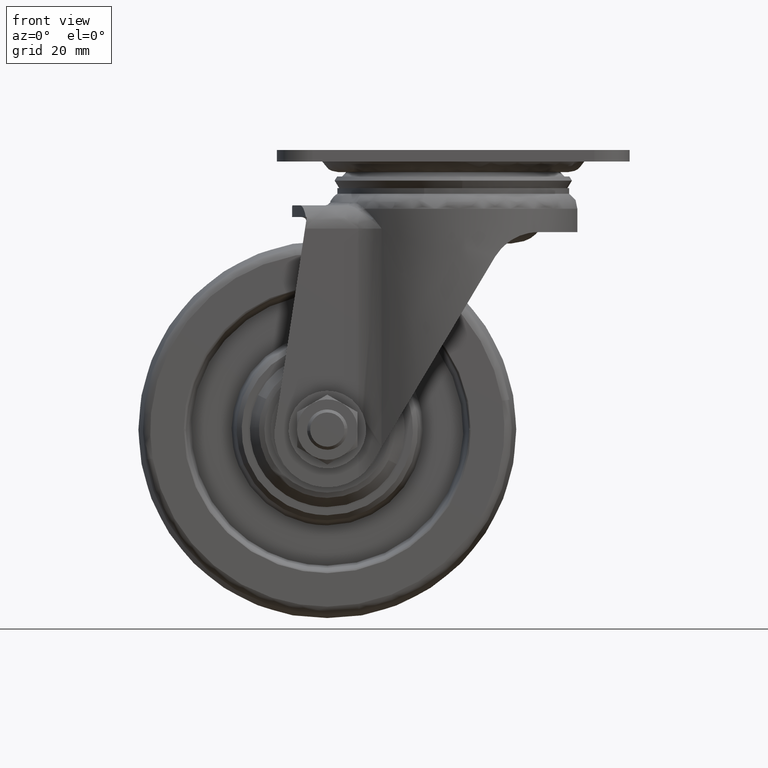
[diagram: clean part render]
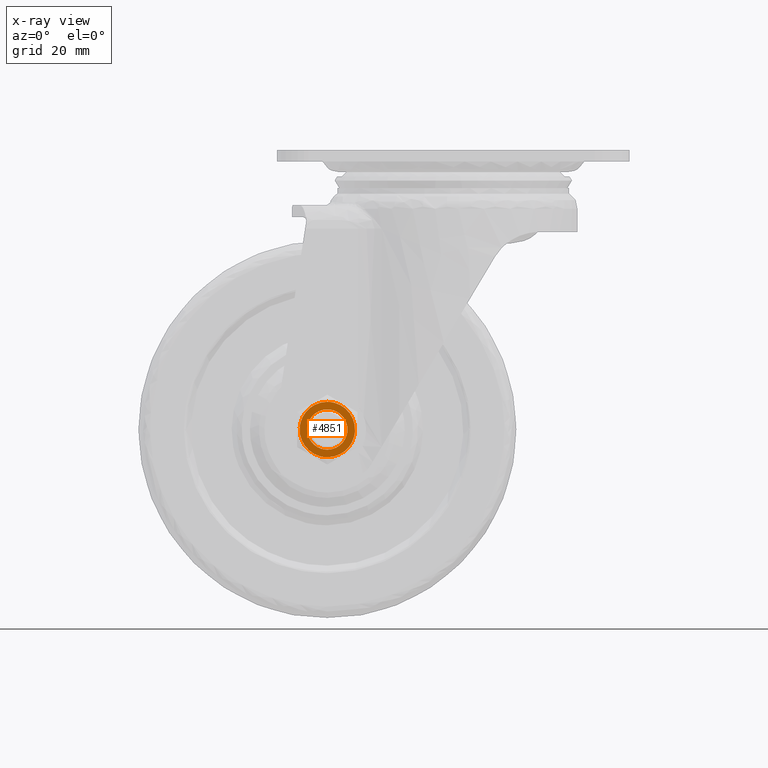
[diagram: x-ray — body ghosted, one internal face saturated and labeled with its STEP entity id]
A machine part, front view, then the same camera in x-ray: the body is ghosted and one INTERNAL B-rep face — a face not visible from any outside direction — is saturated and labeled: STEP entity #4851.
In plain terms, the highlighted face is a freeform B-spline surface patch.
Its self-contained STEP definition (entity closure, byte-faithful):
#4338=CARTESIAN_POINT('',(-21.007460806326531,-16.508500000000002,-55.744149158367620));
#4339=VERTEX_POINT('',#4338);
#4340=CARTESIAN_POINT('',(-25.0,-16.508500000000002,-51.499954999999332));
#4341=VERTEX_POINT('',#4340);
#4342=CARTESIAN_POINT('',(-21.007460806326534,-16.508499999999998,-55.744149158367641));
#4343=CARTESIAN_POINT('',(-21.0,-16.508499999999998,-55.622166053308440));
#4344=CARTESIAN_POINT('',(-21.0,-16.508500000000002,-55.499954999999318));
#4345=CARTESIAN_POINT('',(-21.000000000000004,-16.508499999999998,-51.499954999999332));
#4346=CARTESIAN_POINT('',(-25.0,-16.508500000000002,-51.499954999999332));
#4354=(BOUNDED_CURVE()B_SPLINE_CURVE(2,(#4342,#4343,#4344,#4345,#4346),.UNSPECIFIED.,.F.,.U.)B_SPLINE_CURVE_WITH_KNOTS((3,2,3),(0.239332962232077,0.250000000000000,0.500000000000000),.UNSPECIFIED.)CURVE()GEOMETRIC_REPRESENTATION_ITEM()RATIONAL_B_SPLINE_CURVE((0.976072041652002,0.987502787891793,1.0,0.707106781186548,1.0))REPRESENTATION_ITEM(''));
#4355=EDGE_CURVE('',#4339,#4341,#4354,.T.);
#4357=CARTESIAN_POINT('',(-28.992539193673469,-16.508500000000002,-55.255760841631023));
#4358=VERTEX_POINT('',#4357);
#4359=CARTESIAN_POINT('',(-25.0,-16.508500000000002,-51.499954999999332));
#4360=CARTESIAN_POINT('',(-28.762824267406657,-16.508499999999994,-51.499954999999325));
#4361=CARTESIAN_POINT('',(-28.992539193673473,-16.508500000000002,-55.255760841631009));
#4369=(BOUNDED_CURVE()B_SPLINE_CURVE(2,(#4359,#4360,#4361),.UNSPECIFIED.,.F.,.U.)B_SPLINE_CURVE_WITH_KNOTS((3,3),(0.500000000000000,0.739332962232077),.UNSPECIFIED.)CURVE()GEOMETRIC_REPRESENTATION_ITEM()RATIONAL_B_SPLINE_CURVE((1.0,0.719603993294754,0.976072041652002))REPRESENTATION_ITEM(''));
#4370=EDGE_CURVE('',#4341,#4358,#4369,.T.);
#4405=CARTESIAN_POINT('',(-25.0,-16.508500000000002,-59.499954999999318));
#4406=VERTEX_POINT('',#4405);
#4407=CARTESIAN_POINT('',(-25.0,-16.508500000000002,-59.499954999999318));
#4408=CARTESIAN_POINT('',(-21.237175732593336,-16.508500000000002,-59.499954999999318));
#4409=CARTESIAN_POINT('',(-21.007460806326534,-16.508499999999991,-55.744149158367620));
#4417=(BOUNDED_CURVE()B_SPLINE_CURVE(2,(#4407,#4408,#4409),.UNSPECIFIED.,.F.,.U.)B_SPLINE_CURVE_WITH_KNOTS((3,3),(0.0,0.239332962232077),.UNSPECIFIED.)CURVE()GEOMETRIC_REPRESENTATION_ITEM()RATIONAL_B_SPLINE_CURVE((1.0,0.719603993294754,0.976072041652003))REPRESENTATION_ITEM(''));
#4418=EDGE_CURVE('',#4406,#4339,#4417,.T.);
#4424=CARTESIAN_POINT('',(-28.992539193673473,-16.508500000000002,-55.255760841631009));
#4425=CARTESIAN_POINT('',(-29.0,-16.508499999999994,-55.377743946690195));
#4426=CARTESIAN_POINT('',(-29.0,-16.508500000000002,-55.499954999999318));
#4427=CARTESIAN_POINT('',(-29.0,-16.508499999999998,-59.499954999999325));
#4428=CARTESIAN_POINT('',(-25.0,-16.508500000000002,-59.499954999999318));
#4436=(BOUNDED_CURVE()B_SPLINE_CURVE(2,(#4424,#4425,#4426,#4427,#4428),.UNSPECIFIED.,.F.,.U.)B_SPLINE_CURVE_WITH_KNOTS((3,2,3),(0.739332962232077,0.750000000000000,1.0),.UNSPECIFIED.)CURVE()GEOMETRIC_REPRESENTATION_ITEM()RATIONAL_B_SPLINE_CURVE((0.976072041652002,0.987502787891793,1.0,0.707106781186548,1.0))REPRESENTATION_ITEM(''));
#4437=EDGE_CURVE('',#4358,#4406,#4436,.T.);
#4774=CARTESIAN_POINT('',(-31.049314630200371,-16.508500000000002,-49.450505021319437));
#4775=CARTESIAN_POINT('',(-31.049314630200371,-16.508500000000002,-61.549405273722179));
#4776=CARTESIAN_POINT('',(-18.950685566494961,-16.508500000000002,-49.450505021319437));
#4777=CARTESIAN_POINT('',(-18.950685566494961,-16.508500000000002,-61.549405273722193));
#4778=B_SPLINE_SURFACE_WITH_KNOTS('',1,1,((#4774,#4776),(#4775,#4777)),.UNSPECIFIED.,.F.,.F.,.U.,(2,2),(2,2),(0.0,12.098900252402739),(0.0,12.098629063705410),.UNSPECIFIED.);
#4779=CARTESIAN_POINT('',(-25.0,-16.508500000000002,-60.999954999999318));
#4780=VERTEX_POINT('',#4779);
#4781=CARTESIAN_POINT('',(-19.510258044396860,-16.508500000000002,-55.835712741243157));
#4782=VERTEX_POINT('',#4781);
#4783=CARTESIAN_POINT('',(-25.0,-16.508500000000002,-60.999954999999318));
#4784=CARTESIAN_POINT('',(-19.826107920408745,-16.508499999999998,-60.999954999999090));
#4785=CARTESIAN_POINT('',(-19.510258044396863,-16.508499999999994,-55.835712741243157));
#4793=(BOUNDED_CURVE()B_SPLINE_CURVE(2,(#4783,#4784,#4785),.UNSPECIFIED.,.F.,.U.)B_SPLINE_CURVE_WITH_KNOTS((3,3),(0.0,0.239333252228519),.UNSPECIFIED.)CURVE()GEOMETRIC_REPRESENTATION_ITEM()RATIONAL_B_SPLINE_CURVE((1.0,0.719603653542789,0.976072663170368))REPRESENTATION_ITEM(''));
#4794=EDGE_CURVE('',#4780,#4782,#4793,.T.);
#4795=ORIENTED_EDGE('',*,*,#4794,.T.);
#4796=CARTESIAN_POINT('',(-25.0,-16.508500000000002,-49.999954999999318));
#4797=VERTEX_POINT('',#4796);
#4798=CARTESIAN_POINT('',(-19.510258044396856,-16.508499999999998,-55.835712741243157));
#4799=CARTESIAN_POINT('',(-19.500000000007645,-16.508499999999994,-55.667990572108067));
#4800=CARTESIAN_POINT('',(-19.500000000007532,-16.508500000000002,-55.499954999998849));
#4801=CARTESIAN_POINT('',(-19.500000000003652,-16.508499999999998,-49.999954999999083));
#4802=CARTESIAN_POINT('',(-25.0,-16.508500000000002,-49.999954999999318));
#4810=(BOUNDED_CURVE()B_SPLINE_CURVE(2,(#4798,#4799,#4800,#4801,#4802),.UNSPECIFIED.,.F.,.U.)B_SPLINE_CURVE_WITH_KNOTS((3,2,3),(0.239333252228519,0.250000000000000,0.500000000000000),.UNSPECIFIED.)CURVE()GEOMETRIC_REPRESENTATION_ITEM()RATIONAL_B_SPLINE_CURVE((0.976072663170368,0.987503127643758,1.0,0.707106781186548,1.0))REPRESENTATION_ITEM(''));
#4811=EDGE_CURVE('',#4782,#4797,#4810,.T.);
#4812=ORIENTED_EDGE('',*,*,#4811,.T.);
#4813=CARTESIAN_POINT('',(-30.489741955603140,-16.508500000000002,-55.164197258755472));
#4814=VERTEX_POINT('',#4813);
#4815=CARTESIAN_POINT('',(-25.0,-16.508500000000002,-49.999954999999318));
#4816=CARTESIAN_POINT('',(-30.173892079591248,-16.508500000000002,-49.999954999999538));
#4817=CARTESIAN_POINT('',(-30.489741955603137,-16.508499999999994,-55.164197258755465));
#4825=(BOUNDED_CURVE()B_SPLINE_CURVE(2,(#4815,#4816,#4817),.UNSPECIFIED.,.F.,.U.)B_SPLINE_CURVE_WITH_KNOTS((3,3),(0.500000000000000,0.739333252228518),.UNSPECIFIED.)CURVE()GEOMETRIC_REPRESENTATION_ITEM()RATIONAL_B_SPLINE_CURVE((1.0,0.719603653542789,0.976072663170368))REPRESENTATION_ITEM(''));
#4826=EDGE_CURVE('',#4797,#4814,#4825,.T.);
#4827=ORIENTED_EDGE('',*,*,#4826,.T.);
#4828=CARTESIAN_POINT('',(-30.489741955603137,-16.508500000000002,-55.164197258755465));
#4829=CARTESIAN_POINT('',(-30.499999999992355,-16.508500000000002,-55.331919427890554));
#4830=CARTESIAN_POINT('',(-30.499999999992479,-16.508500000000002,-55.499954999999758));
#4831=CARTESIAN_POINT('',(-30.499999999996351,-16.508499999999998,-60.999954999999524));
#4832=CARTESIAN_POINT('',(-25.0,-16.508500000000002,-60.999954999999318));
#4840=(BOUNDED_CURVE()B_SPLINE_CURVE(2,(#4828,#4829,#4830,#4831,#4832),.UNSPECIFIED.,.F.,.U.)B_SPLINE_CURVE_WITH_KNOTS((3,2,3),(0.739333252228519,0.750000000000000,1.0),.UNSPECIFIED.)CURVE()GEOMETRIC_REPRESENTATION_ITEM()RATIONAL_B_SPLINE_CURVE((0.976072663170369,0.987503127643759,1.0,0.707106781186548,1.0))REPRESENTATION_ITEM(''));
#4841=EDGE_CURVE('',#4814,#4780,#4840,.T.);
#4842=ORIENTED_EDGE('',*,*,#4841,.T.);
#4843=EDGE_LOOP('',(#4795,#4812,#4827,#4842));
#4844=FACE_OUTER_BOUND('',#4843,.T.);
#4845=ORIENTED_EDGE('',*,*,#4370,.F.);
#4846=ORIENTED_EDGE('',*,*,#4355,.F.);
#4847=ORIENTED_EDGE('',*,*,#4418,.F.);
#4848=ORIENTED_EDGE('',*,*,#4437,.F.);
#4849=EDGE_LOOP('',(#4845,#4846,#4847,#4848));
#4850=FACE_BOUND('',#4849,.T.);
#4851=ADVANCED_FACE('',(#4844,#4850),#4778,.T.);